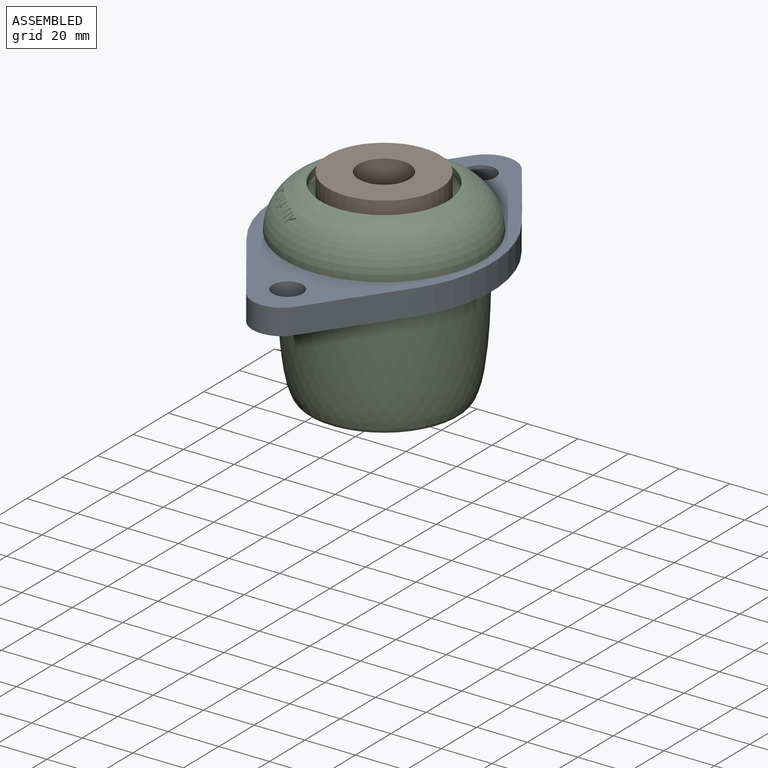
[diagram: assembled view]
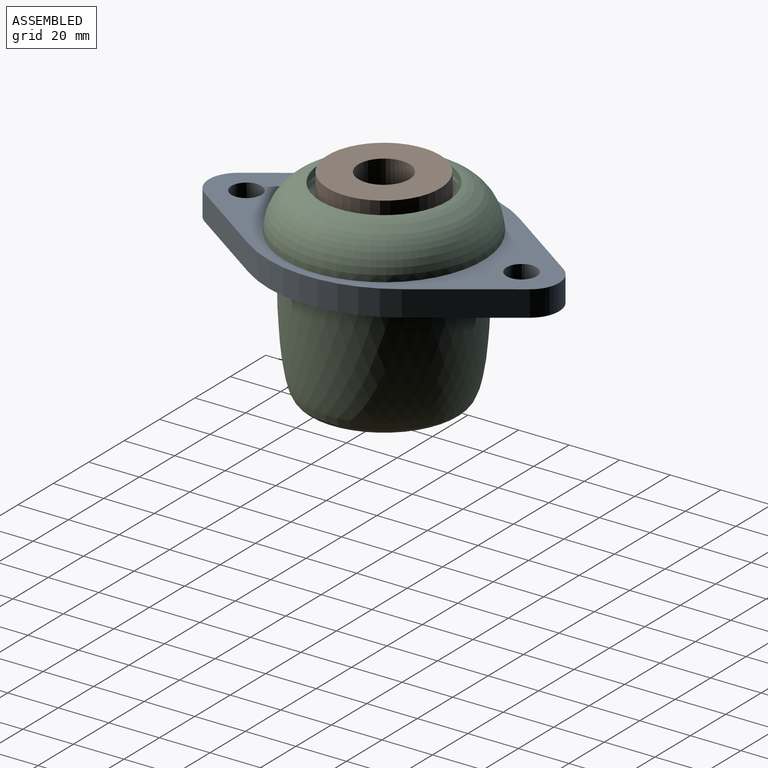
[diagram: assembled view, second angle]
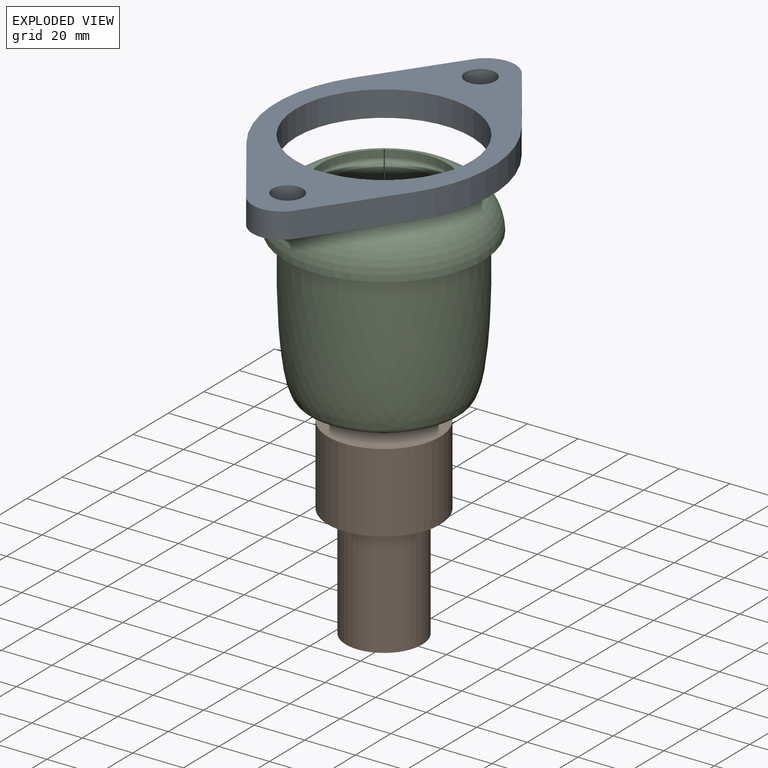
[diagram: exploded view]
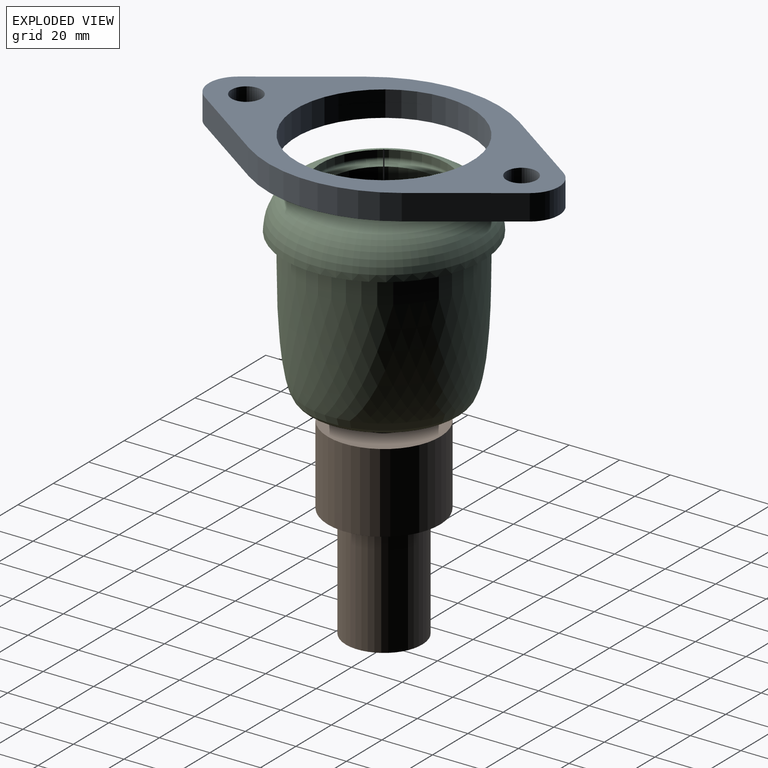
[diagram: exploded view, second angle]
ASSEMBLY  parts=3 mates=4
PART A: 13 faces, bbox 85.4x138.5x10.2 mm
  f0: plane 34.01x23.68mm, normal (0.82,-0.57,0), area 421mm2, adj f1,f7,f8,f9
  f1: cylinder r=53.01mm len=60.58mm, axis (0,0,1), area 655.1mm2, adj f0,f2,f8,f9
  f2: plane 34.01x23.68mm, normal (0.82,0.57,0), area 421mm2, adj f1,f3,f8,f9
  f3: cylinder r=11.61mm len=19.05mm, axis (0,0,1), area 227mm2, adj f2,f4,f8,f9
  f4: plane 34.01x23.68mm, normal (-0.82,0.57,0), area 421mm2, adj f3,f5,f8,f9
  f5: cylinder r=53.01mm len=60.58mm, axis (0,0,1), area 655.1mm2, adj f4,f6,f8,f9
  f6: plane 34.01x23.68mm, normal (-0.82,-0.57,0), area 421mm2, adj f5,f7,f8,f9
  f7: cylinder r=11.61mm len=19.05mm, axis (0,0,1), area 227mm2, adj f0,f6,f8,f9
  f8: plane 138.54x85.42mm, normal (0,0,-1), area 3808.6mm2, adj f0,f1,f2,f3,f4,f5,f6,f7
  f9: plane 138.54x85.42mm, normal (0,0,1), area 3808.6mm2, adj f0,f1,f2,f3,f4,f5,f6,f7
  f10: cylinder r=34.84mm len=69.67mm, axis (0,0,1), area 2223.8mm2, adj f8,f9
  f11: cylinder r=5.97mm len=11.94mm, axis (0,0,1), area 381mm2, adj f8,f9
  f12: cylinder r=5.97mm len=11.94mm, axis (0,0,1), area 381mm2, adj f8,f9
PART B: 6 faces, bbox 44.5x44.5x76.2 mm
  f0: cylinder r=22.23mm len=44.45mm, axis (0,0,1), area 4380.9mm2, adj f3,f5
  f1: plane 30.23x30.23mm, normal (0,0,-1), area 397.3mm2, adj f2,f4
  f2: cylinder r=10.1mm len=76.2mm, axis (0,0,1), area 4834mm2, adj f1,f3
  f3: plane 44.45x44.45mm, normal (0,0,1), area 1231.5mm2, adj f0,f2
  f4: cylinder r=15.11mm len=44.83mm, axis (0,0,-1), area 4256.7mm2, adj f1,f5
  f5: plane 44.45x44.45mm, normal (0,0,-1), area 834.2mm2, adj f0,f4
PART C: 112 faces, bbox 85.1x85.1x76.6 mm
  f0: torus R=21.5mm, axis (0,0,1), area 5173.6mm2, adj f2,f4,f20,f21,f22,f23,f24,f25
  f1: cylinder r=34.84mm len=69.67mm, axis (0,0,-1), area 2223.8mm2, adj f2,f8
  f2: plane 78.56x78.56mm, normal (0,0,-1), area 1035mm2, adj f0,f1
  f3: cylinder r=22.23mm len=44.45mm, axis (0,0,1), area 3190.2mm2, adj f5,f6
  f4: cylinder r=25.15mm len=50.29mm, axis (0,0,1), area 444.3mm2, adj f0,f11
  f5: plane 46.48x46.48mm, normal (0,0,1), area 145.1mm2, adj f3,f11
  f6: plane 44.45x44.45mm, normal (0,0,1), area 834.2mm2, adj f3,f9
  f7: revolved ~56.64x56.64mm, area 2105.8mm2, adj f8,f10
  f8: revolved ~69.67x69.67mm, area 10528.6mm2, adj f1,f7
  f9: cylinder r=15.11mm len=30.23mm, axis (0,0,-1), area 2809.6mm2, adj f6,f12
  f10: cylinder r=25.78mm len=51.56mm, axis (0,0,-1), area 1155.3mm2, adj f7,f12
  f11: torus R=23.24mm, axis (0,0,-1), area 459.8mm2, adj f4,f5
  f12: torus R=20.45mm, axis (0,0,-1), area 2152.8mm2, adj f9,f10
  f13: extruded ~3.92x3.92mm, area 5.9mm2, adj f14,f28,f29,f110
  f14: extruded ~3.92x3.92mm, area 5.9mm2, adj f13,f15,f29,f110
  f15: extruded ~3.39x3.39mm, area 5.2mm2, adj f14,f16,f29,f110
  f16: extruded ~3.5x3.5mm, area 5.3mm2, adj f15,f17,f29,f110
  f17: extruded ~4.18x4.18mm, area 6.3mm2, adj f16,f18,f29,f110
  f18: extruded ~4.19x4.19mm, area 6.4mm2, adj f17,f19,f29,f110
  f19: extruded ~3.51x3.51mm, area 5.4mm2, adj f18,f28,f29,f110
  f20: extruded ~4.44x4.44mm, area 8mm2, adj f0,f21,f27,f29
  f21: extruded ~4.44x4.44mm, area 8mm2, adj f0,f20,f22,f29
  f22: extruded ~3.61x3.61mm, area 7.1mm2, adj f0,f21,f23,f29
  f23: extruded ~3.44x3.44mm, area 6.9mm2, adj f0,f22,f24,f29
  f24: extruded ~4.09x4.09mm, area 7.2mm2, adj f0,f23,f25,f29
  f25: extruded ~4.08x4.08mm, area 7.3mm2, adj f0,f24,f26,f29
  f26: extruded ~3.44x3.44mm, area 6.9mm2, adj f0,f25,f27,f29
  f27: extruded ~3.62x3.62mm, area 7.1mm2, adj f0,f20,f26,f29
  f28: extruded ~3.39x3.39mm, area 5.2mm2, adj f13,f19,f29,f110
  f29: plane 3.96x3.14mm, normal (0,0.71,0.71), area 5.9mm2, adj f13,f14,f15,f16,f17,f18,f19,f20
  f30: plane 1.94x1.94mm, normal (0,-0.71,0.71), area 1.6mm2, adj f0,f31,f41,f42
  f31: plane 4.09x3.54mm, normal (0.8,0.42,-0.42), area 9mm2, adj f0,f30,f32,f42
  f32: plane 3.68x3.31mm, normal (0.73,-0.48,0.48), area 7.9mm2, adj f0,f31,f33,f42
  f33: plane 2.11x2.11mm, normal (0,0.71,-0.71), area 1.7mm2, adj f0,f32,f34,f42
  f34: plane 4.01x3.62mm, normal (-0.74,0.48,-0.48), area 9.5mm2, adj f0,f33,f35,f42
  f35: plane 4.01x3.97mm, normal (1,0,0), area 7.5mm2, adj f0,f34,f36,f42
  f36: plane 2.53x2.53mm, normal (0,0.71,-0.71), area 1.8mm2, adj f0,f35,f37,f42
  f37: plane 5.58x5.5mm, normal (-1,0,0), area 15.5mm2, adj f0,f36,f38,f42
  f38: plane 2.45x2.45mm, normal (0,-0.71,0.71), area 1.7mm2, adj f0,f37,f39,f42
  f39: plane 3.69x3.57mm, normal (1,0,0), area 5.8mm2, adj f0,f38,f40,f42
  f40: plane 2.77x2.7mm, normal (0.66,-0.53,0.53), area 2.1mm2, adj f0,f39,f41,f42
  f41: plane 3.91x3.44mm, normal (-0.8,-0.42,0.42), area 8.1mm2, adj f0,f30,f40,f42
  f42: plane 3.11x3.05mm, normal (0,0.71,0.71), area 4.9mm2, adj f30,f31,f32,f33,f34,f35,f36,f37
  f43: plane 2.81x2.81mm, normal (0,-0.71,0.71), area 1.9mm2, adj f0,f44,f62,f63
  f44: plane 5.79x5.68mm, normal (0.97,-0.18,0.18), area 17.3mm2, adj f0,f43,f45,f63
  f45: plane 2.7x2.7mm, normal (0,0.71,-0.71), area 2mm2, adj f0,f44,f46,f63
  f46: plane 4.73x4.58mm, normal (-0.97,0.17,-0.17), area 10.8mm2, adj f0,f45,f47,f63
  f47: extruded ~3.57x3.57mm, area 4.2mm2, adj f0,f46,f48,f63
  f48: extruded ~3.64x3.64mm, area 4.3mm2, adj f0,f47,f49,f63
  f49: plane 4.81x4.79mm, normal (0.96,0.21,-0.21), area 11.5mm2, adj f0,f48,f50,f63
  f50: plane 2.98x2.98mm, normal (0,0.71,-0.71), area 2.2mm2, adj f0,f49,f51,f63
  f51: plane 5x4.84mm, normal (-0.96,0.2,-0.2), area 11.9mm2, adj f0,f50,f52,f63
  f52: extruded ~3.89x3.89mm, area 4.8mm2, adj f0,f51,f53,f63
  f53: extruded ~3.9x3.9mm, area 4.6mm2, adj f0,f52,f54,f63
  f54: plane 5.07x5.03mm, normal (0.97,0.18,-0.18), area 12.4mm2, adj f0,f53,f55,f63
  f55: plane 3.17x3.17mm, normal (0,0.71,-0.71), area 2.4mm2, adj f0,f54,f56,f63
  f56: plane 6.24x6.17mm, normal (-0.97,-0.18,0.18), area 20.2mm2, adj f0,f55,f57,f63
  f57: plane 3.1x3.1mm, normal (0,-0.71,0.71), area 2.2mm2, adj f0,f56,f58,f63
  f58: plane 5.09x5.08mm, normal (0.96,-0.2,0.2), area 13mm2, adj f0,f57,f59,f63
  f59: extruded ~3.66x3.66mm, area 3.8mm2, adj f0,f58,f60,f63
  f60: extruded ~3.26x3.26mm, area 1.5mm2, adj f0,f59,f61,f63
  f61: extruded ~3.35x3.35mm, area 2.1mm2, adj f0,f60,f62,f63
  f62: plane 5.06x4.86mm, normal (-0.96,-0.2,0.2), area 12.5mm2, adj f0,f43,f61,f63
  f63: plane 5.43x3.05mm, normal (0,0.71,0.71), area 7.9mm2, adj f43,f44,f45,f46,f47,f48,f49,f50
  f64: plane 3.35x3.35mm, normal (0,-0.71,0.71), area 2.4mm2, adj f0,f65,f75,f76
  f65: plane 6.41x6.37mm, normal (1,0,0), area 20.6mm2, adj f0,f64,f66,f76
  f66: plane 3.31x3.31mm, normal (0,0.71,-0.71), area 2.3mm2, adj f0,f65,f67,f76
  f67: plane 4.71x4.6mm, normal (-1,0,0), area 8.7mm2, adj f0,f66,f68,f76
  f68: plane 3.41x3.41mm, normal (0,0.71,-0.71), area 10.9mm2, adj f0,f67,f69,f76
  f69: plane 4.66x4.56mm, normal (1,0,0), area 8.6mm2, adj f0,f68,f70,f76
  f70: plane 3.25x3.25mm, normal (0,0.71,-0.71), area 2.3mm2, adj f0,f69,f71,f76
  f71: plane 6.31x6.28mm, normal (-1,0,0), area 20.2mm2, adj f0,f70,f72,f76
  f72: plane 3.29x3.29mm, normal (0,-0.71,0.71), area 2.3mm2, adj f0,f71,f73,f76
  f73: plane 4.8x4.73mm, normal (1,0,0), area 9.6mm2, adj f0,f72,f74,f76
  f74: plane 3.42x3.42mm, normal (0,-0.71,0.71), area 10.9mm2, adj f0,f73,f75,f76
  f75: plane 4.86x4.78mm, normal (-1,0,0), area 9.7mm2, adj f0,f64,f74,f76
  f76: plane 3.27x3.05mm, normal (0,0.71,0.71), area 5.3mm2, adj f64,f65,f66,f67,f68,f69,f70,f71
  f77: plane 4.3x4.29mm, normal (-0.94,-0.25,0.25), area 6.8mm2, adj f78,f89,f90,f111
  f78: plane 3.41x3.41mm, normal (0,0.71,-0.71), area 6.7mm2, adj f77,f79,f90,f111
  f79: plane 4.35x4.31mm, normal (0.94,-0.25,0.25), area 6.8mm2, adj f78,f80,f90,f111
  f80: extruded ~3.79x3.79mm, area 3.1mm2, adj f79,f89,f90,f111
  f81: plane 4.31x4.2mm, normal (-0.93,-0.26,0.26), area 6.8mm2, adj f0,f82,f88,f90
  f82: plane 3.23x3.23mm, normal (0,-0.71,0.71), area 2.4mm2, adj f0,f81,f83,f90
  f83: plane 6.32x6.26mm, normal (0.93,0.26,-0.26), area 21.6mm2, adj f0,f82,f84,f90
  f84: plane 3.27x3.27mm, normal (0,0.71,-0.71), area 1.9mm2, adj f0,f83,f85,f90
  f85: plane 6.41x6.33mm, normal (-0.93,0.26,-0.26), area 22.2mm2, adj f0,f84,f86,f90
  f86: plane 3.35x3.35mm, normal (0,-0.71,0.71), area 2.4mm2, adj f0,f85,f87,f90
  f87: plane 4.37x4.32mm, normal (0.93,-0.26,0.26), area 7mm2, adj f0,f86,f88,f90
  f88: plane 3.41x3.41mm, normal (0,-0.71,0.71), area 8.2mm2, adj f0,f81,f87,f90
  f89: extruded ~3.78x3.78mm, area 3.1mm2, adj f77,f80,f90,f111
  f90: plane 3.82x3.06mm, normal (0,0.71,0.71), area 4.8mm2, adj f77,f78,f79,f80,f81,f82,f83,f84
  f91: plane 4.97x4.83mm, normal (-0.93,-0.25,0.25), area 12.9mm2, adj f0,f92,f108,f109
  f92: plane 2.34x2.34mm, normal (0,-0.71,0.71), area 1.3mm2, adj f0,f91,f93,f109
  f93: plane 5.41x5.06mm, normal (0.93,-0.25,0.25), area 14.9mm2, adj f0,f92,f94,f109
  f94: plane 2.69x2.69mm, normal (0,-0.71,0.71), area 0.1mm2, adj f0,f93,f95,f109
  f95: extruded ~3.45x3.45mm, area 4mm2, adj f0,f94,f96,f109
  f96: plane 4.68x4.56mm, normal (-1,0,0), area 10.5mm2, adj f0,f95,f97,f109
  f97: plane 2.67x2.67mm, normal (0,-0.71,0.71), area 1.9mm2, adj f0,f96,f98,f109
  f98: plane 5.77x5.72mm, normal (1,0,0), area 16.8mm2, adj f0,f97,f99,f109
  f99: plane 2.73x2.73mm, normal (0,0.71,-0.71), area 2.8mm2, adj f0,f98,f100,f109
  f100: plane 5.16x4.92mm, normal (-0.93,0.26,-0.26), area 13.7mm2, adj f0,f99,f101,f109
  f101: plane 2.38x2.38mm, normal (0,0.71,-0.71), area 0.1mm2, adj f0,f100,f102,f109
  f102: plane 4.89x4.68mm, normal (0.93,0.25,-0.25), area 12.4mm2, adj f0,f101,f103,f109
  f103: plane 2.17x2.17mm, normal (0,0.71,-0.71), area 2.2mm2, adj f0,f102,f104,f109
  f104: plane 5.07x4.9mm, normal (-1,0,0), area 12.2mm2, adj f0,f103,f105,f109
  f105: plane 1.96x1.96mm, normal (0,-0.71,0.71), area 1.2mm2, adj f0,f104,f106,f109
  f106: plane 4.08x3.9mm, normal (1,0,0), area 8mm2, adj f0,f105,f107,f109
  f107: extruded ~2.9x2.9mm, area 3.3mm2, adj f0,f106,f108,f109
  f108: plane 2.13x2.13mm, normal (0,-0.71,0.71), area 0.1mm2, adj f0,f91,f107,f109
  f109: plane 4.27x3.05mm, normal (0,0.71,0.71), area 7.9mm2, adj f91,f92,f93,f94,f95,f96,f97,f98
  f110: torus R=21.5mm, axis (0,0,1), area 8.2mm2, adj f13,f14,f15,f16,f17,f18,f19,f28
  f111: torus R=21.5mm, axis (0,0,1), area 1.3mm2, adj f77,f78,f79,f80,f89
PLACE A t=(-2.59,17.03,-18.17)mm fixed
PLACE B rot(axis=(0,0,1),91.7deg) t=(-2.59,17.03,3.04)mm
PLACE C rot(axis=(0,0,1),134.2deg) t=(-2.59,17.03,-28.33)mm
MATE planar B.f0 <-> C.f3  axis (0,0,-1) through (-2.59,17.03,-28.33)mm
MATE planar A.f9 <-> C.f0  axis (0,0,1) through (18.77,-30.27,-18.17)mm
MATE cylindrical A.f10 <-> C.f1  axis (0,0,1) through (-2.59,17.03,-23.25)mm
MATE cylindrical B.f0 <-> C.f3  axis (0,0,1) through (-2.59,17.03,-12.65)mm
